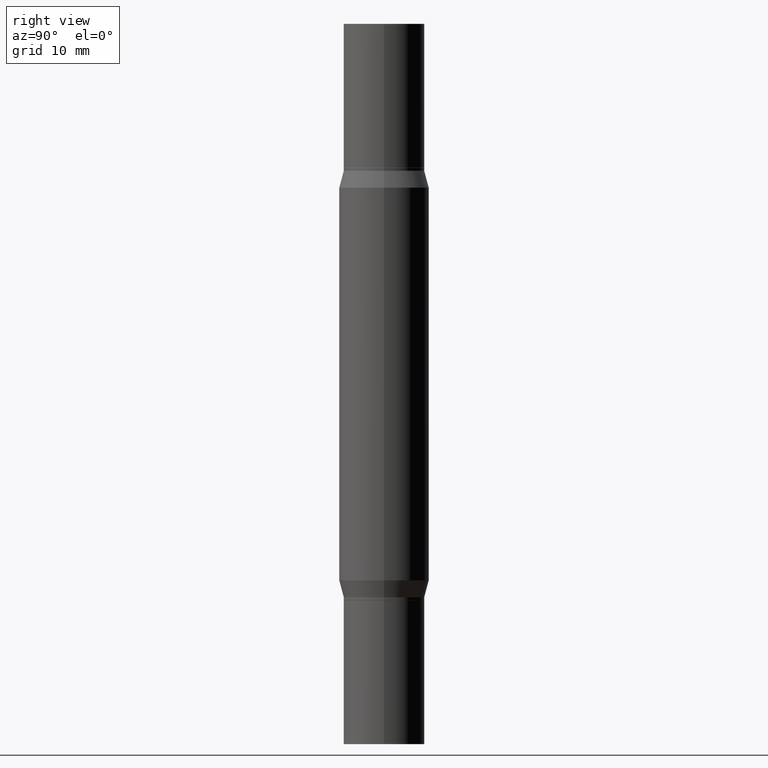
[diagram: clean part render]
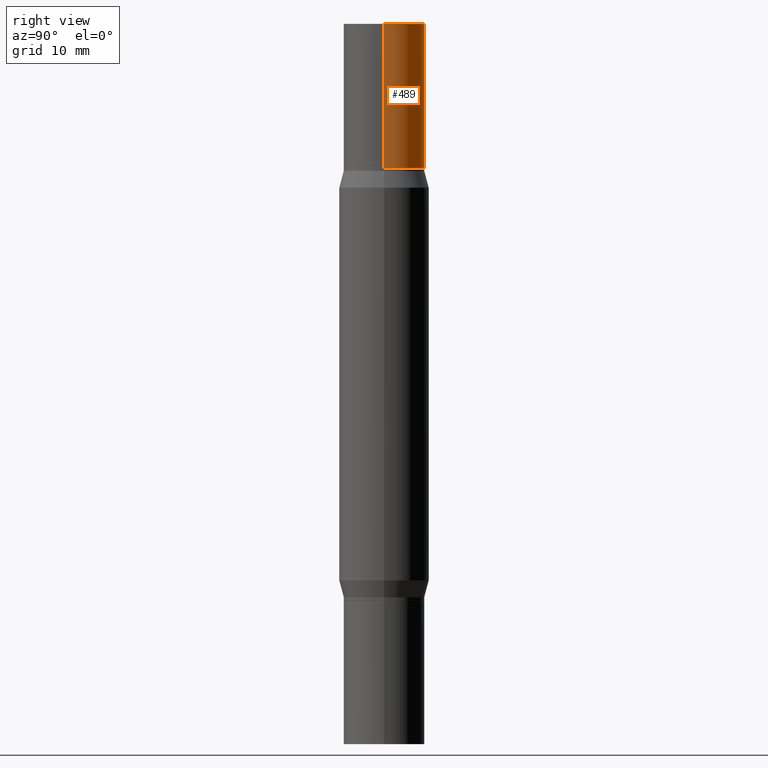
[diagram: same view with one face highlighted and labeled with its STEP entity id]
A machine part, right view. The second image highlights one B-rep face of the part: STEP entity #489.
In plain terms, the highlighted cylindrical surface (partial cylindrical patch) has radius 3.5712 mm, axis along (-0, -0, -1).
Its self-contained STEP definition (entity closure, byte-faithful):
#38 = EDGE_CURVE ( 'NONE', #193, #849, #745, .T. ) ;
#49 = CARTESIAN_POINT ( 'NONE',  ( -0.1406000000000000028, 9.203943989387182081E-17, 5.463695987328557991E-16 ) ) ;
#124 = DIRECTION ( 'NONE',  ( 1.000000000000000000, -6.982962677686266711E-15, 0.000000000000000000 ) ) ;
#134 = DIRECTION ( 'NONE',  ( -2.445468806185136597E-29, -3.491805094961124077E-15, -1.000000000000000000 ) ) ;
#141 = FACE_OUTER_BOUND ( 'NONE', #910, .T. ) ;
#150 = ORIENTED_EDGE ( 'NONE', *, *, #156, .T. ) ;
#156 = EDGE_CURVE ( 'NONE', #842, #940, #432, .T. ) ;
#184 = CARTESIAN_POINT ( 'NONE',  ( 0.1406000000000000028, -9.710912594738023419E-15, -2.499999999999999556 ) ) ;
#193 = VERTEX_POINT ( 'NONE', #387 ) ;
#281 = CARTESIAN_POINT ( 'NONE',  ( 0.000000000000000000, -8.729108042255335103E-15, -2.499999999999999556 ) ) ;
#291 = ORIENTED_EDGE ( 'NONE', *, *, #802, .F. ) ;
#335 = DIRECTION ( 'NONE',  ( -2.445468806185136877E-29, -3.491805094961123683E-15, -1.000000000000000000 ) ) ;
#352 = AXIS2_PLACEMENT_3D ( 'NONE', #897, #807, #441 ) ;
#387 = CARTESIAN_POINT ( 'NONE',  ( 0.1406000000000000028, -9.813998573352146072E-16, 5.463695987328526437E-16 ) ) ;
#402 = DIRECTION ( 'NONE',  ( -2.445468806185136877E-29, -3.491805094961123683E-15, -1.000000000000000000 ) ) ;
#432 = CIRCLE ( 'NONE', #352, 0.1406000000000000028 ) ;
#441 = DIRECTION ( 'NONE',  ( 1.000000000000000000, -6.982962677686265133E-15, 0.000000000000000000 ) ) ;
#489 = ADVANCED_FACE ( 'NONE', ( #141 ), #738, .T. ) ;
#501 = CARTESIAN_POINT ( 'NONE',  ( 6.113672015462842613E-29, 4.046951474745467748E-19, 5.463695987328526437E-16 ) ) ;
#514 = CARTESIAN_POINT ( 'NONE',  ( 0.1406000000000000028, -2.727302404815774476E-15, -0.4999999999999993339 ) ) ;
#567 = CARTESIAN_POINT ( 'NONE',  ( -0.1406000000000000028, -7.764522023768658166E-15, -2.499999999999999556 ) ) ;
#589 = CARTESIAN_POINT ( 'NONE',  ( -0.1406000000000000028, 9.203943989387194407E-17, -0.4999999999999993339 ) ) ;
#634 = VECTOR ( 'NONE', #335, 39.37007874015748143 ) ;
#738 = CYLINDRICAL_SURFACE ( 'NONE', #778, 0.1406000000000000028 ) ;
#745 = CIRCLE ( 'NONE', #867, 0.1406000000000000028 ) ;
#748 = ORIENTED_EDGE ( 'NONE', *, *, #773, .T. ) ;
#773 = EDGE_CURVE ( 'NONE', #193, #842, #939, .T. ) ;
#778 = AXIS2_PLACEMENT_3D ( 'NONE', #281, #134, #819 ) ;
#797 = DIRECTION ( 'NONE',  ( 2.445468806185136597E-29, 3.491805094961124077E-15, 1.000000000000000000 ) ) ;
#802 = EDGE_CURVE ( 'NONE', #849, #940, #850, .T. ) ;
#807 = DIRECTION ( 'NONE',  ( 2.445468806185136597E-29, 3.491805094961124077E-15, 1.000000000000000000 ) ) ;
#810 = VECTOR ( 'NONE', #402, 39.37007874015748143 ) ;
#819 = DIRECTION ( 'NONE',  ( 1.000000000000000000, -6.982962677686265133E-15, 0.000000000000000000 ) ) ;
#842 = VERTEX_POINT ( 'NONE', #514 ) ;
#849 = VERTEX_POINT ( 'NONE', #49 ) ;
#850 = LINE ( 'NONE', #567, #810 ) ;
#867 = AXIS2_PLACEMENT_3D ( 'NONE', #501, #797, #124 ) ;
#897 = CARTESIAN_POINT ( 'NONE',  ( 4.890937612370273754E-29, -1.745497852333085568E-15, -0.4999999999999993339 ) ) ;
#899 = ORIENTED_EDGE ( 'NONE', *, *, #38, .F. ) ;
#910 = EDGE_LOOP ( 'NONE', ( #291, #899, #748, #150 ) ) ;
#939 = LINE ( 'NONE', #184, #634 ) ;
#940 = VERTEX_POINT ( 'NONE', #589 ) ;